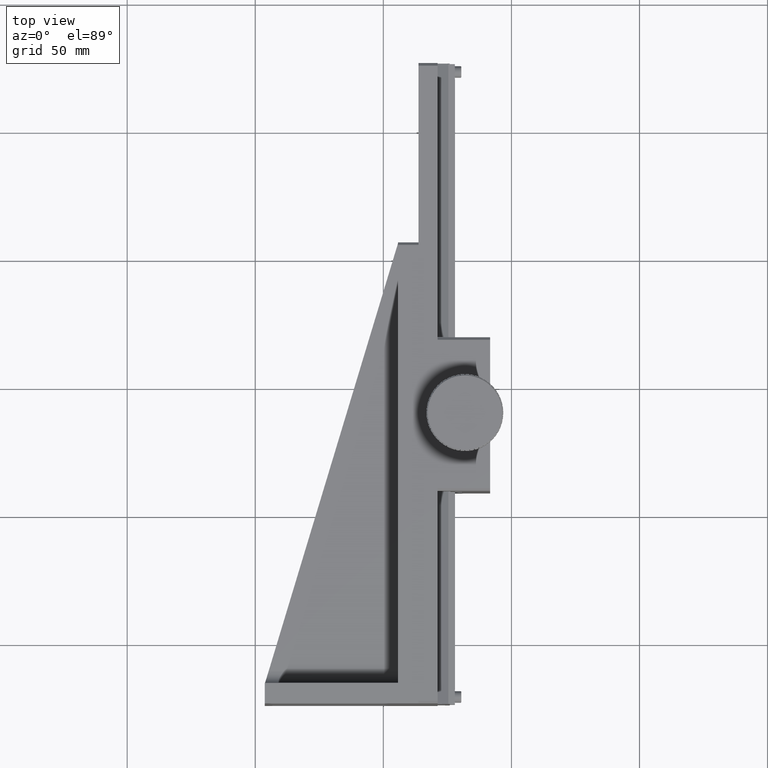
[diagram: clean part render]
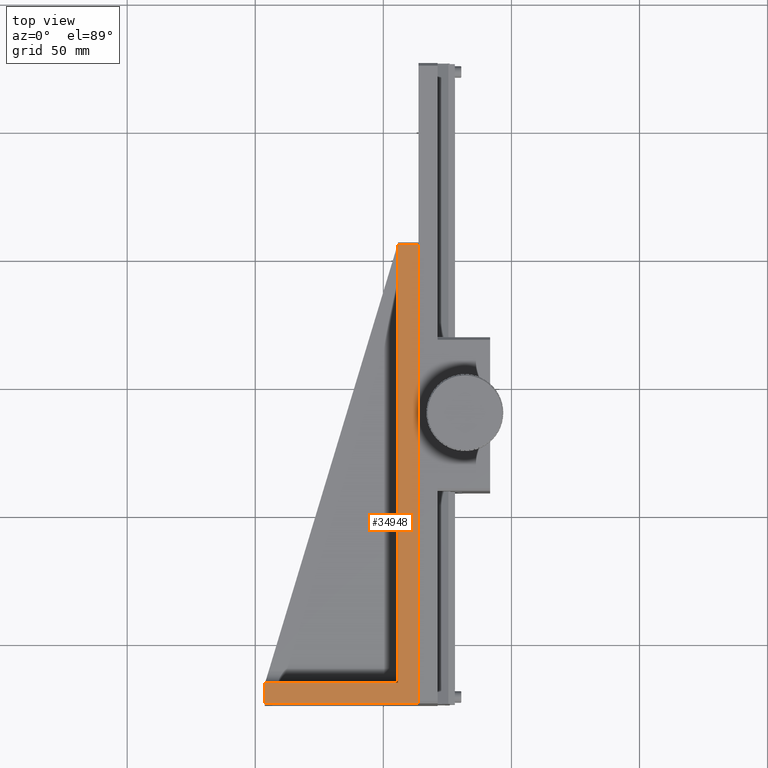
[diagram: same view with one face highlighted and labeled with its STEP entity id]
A machine part, top view. The second image highlights one B-rep face of the part: STEP entity #34948.
In plain terms, the highlighted planar face has unit normal (-0, 0, -1).
Its self-contained STEP definition (entity closure, byte-faithful):
#4862 = EDGE_CURVE ( 'NONE', #35959, #34121, #79175, .T. ) ;
#5363 = EDGE_CURVE ( 'NONE', #34121, #7149, #28091, .T. ) ;
#7149 = VERTEX_POINT ( 'NONE', #93540 ) ;
#7888 = LINE ( 'NONE', #101549, #41598 ) ;
#8177 = EDGE_CURVE ( 'NONE', #7149, #60804, #108530, .T. ) ;
#8320 = CARTESIAN_POINT ( 'NONE',  ( 3.709557240853277094, 134.1604683425934184, 150.7408711668434194 ) ) ;
#11080 = EDGE_LOOP ( 'NONE', ( #26043, #51105, #40404, #65509, #88779, #64839 ) ) ;
#11398 = CARTESIAN_POINT ( 'NONE',  ( 55.70955724085326466, 305.1604683425933899, 150.7408711668431351 ) ) ;
#11626 = DIRECTION ( 'NONE',  ( -1.000000000000000000, 0.000000000000000000, 6.982962677686266711E-15 ) ) ;
#11686 = EDGE_CURVE ( 'NONE', #32238, #11992, #7888, .T. ) ;
#11992 = VERTEX_POINT ( 'NONE', #69587 ) ;
#20614 = PLANE ( 'NONE',  #28192 ) ;
#21779 = VECTOR ( 'NONE', #100133, 1000.000000000000000 ) ;
#24638 = EDGE_CURVE ( 'NONE', #32238, #35959, #29538, .T. ) ;
#26043 = ORIENTED_EDGE ( 'NONE', *, *, #104092, .F. ) ;
#26784 = VECTOR ( 'NONE', #75443, 1000.000000000000000 ) ;
#27797 = CARTESIAN_POINT ( 'NONE',  ( 63.70955724085327887, 126.1604683425934184, 150.7408711668433057 ) ) ;
#28091 = LINE ( 'NONE', #71889, #100409 ) ;
#28192 = AXIS2_PLACEMENT_3D ( 'NONE', #104175, #63805, #78977 ) ;
#28310 = CARTESIAN_POINT ( 'NONE',  ( 3.709557240853068816, 126.1604683425934184, 150.7408711668435330 ) ) ;
#29538 = LINE ( 'NONE', #36848, #36492 ) ;
#32238 = VERTEX_POINT ( 'NONE', #27797 ) ;
#32765 = LINE ( 'NONE', #47396, #26784 ) ;
#34121 = VERTEX_POINT ( 'NONE', #8320 ) ;
#34948 = ADVANCED_FACE ( 'NONE', ( #70576 ), #20614, .F. ) ;
#35959 = VERTEX_POINT ( 'NONE', #28310 ) ;
#36492 = VECTOR ( 'NONE', #11626, 1000.000000000000000 ) ;
#36848 = CARTESIAN_POINT ( 'NONE',  ( 63.70955724085327887, 126.1604683425934184, 150.7408711668431351 ) ) ;
#40404 = ORIENTED_EDGE ( 'NONE', *, *, #5363, .F. ) ;
#41598 = VECTOR ( 'NONE', #49995, 1000.000000000000000 ) ;
#47396 = CARTESIAN_POINT ( 'NONE',  ( 63.70955724085327887, 305.1604683425933899, 150.7408711668431351 ) ) ;
#49995 = DIRECTION ( 'NONE',  ( 0.000000000000000000, 1.000000000000000000, -0.000000000000000000 ) ) ;
#51105 = ORIENTED_EDGE ( 'NONE', *, *, #8177, .F. ) ;
#60804 = VERTEX_POINT ( 'NONE', #11398 ) ;
#61051 = VECTOR ( 'NONE', #107140, 1000.000000000000000 ) ;
#62337 = DIRECTION ( 'NONE',  ( 1.000000000000000000, -0.000000000000000000, -6.982962677686266711E-15 ) ) ;
#63805 = DIRECTION ( 'NONE',  ( -6.982962677686266711E-15, 0.000000000000000000, -1.000000000000000000 ) ) ;
#64839 = ORIENTED_EDGE ( 'NONE', *, *, #11686, .T. ) ;
#65509 = ORIENTED_EDGE ( 'NONE', *, *, #4862, .F. ) ;
#69587 = CARTESIAN_POINT ( 'NONE',  ( 63.70955724085327887, 305.1604683425933331, 150.7408711668431351 ) ) ;
#70576 = FACE_OUTER_BOUND ( 'NONE', #11080, .T. ) ;
#71889 = CARTESIAN_POINT ( 'NONE',  ( 63.70955724085327887, 134.1604683425934184, 150.7408711668431351 ) ) ;
#75443 = DIRECTION ( 'NONE',  ( 1.000000000000000000, -0.000000000000000000, -6.982962677686266711E-15 ) ) ;
#78977 = DIRECTION ( 'NONE',  ( -1.000000000000000000, 0.000000000000000000, 6.982962677686266711E-15 ) ) ;
#79175 = LINE ( 'NONE', #88707, #61051 ) ;
#82229 = CARTESIAN_POINT ( 'NONE',  ( 55.70955724085325755, 306.1604683425933899, 150.7408711668431636 ) ) ;
#88707 = CARTESIAN_POINT ( 'NONE',  ( 3.709557240853277094, 306.1604683425933899, 150.7408711668435330 ) ) ;
#88779 = ORIENTED_EDGE ( 'NONE', *, *, #24638, .F. ) ;
#93540 = CARTESIAN_POINT ( 'NONE',  ( 55.70955724085325755, 134.1604683425934184, 150.7408711668431351 ) ) ;
#100133 = DIRECTION ( 'NONE',  ( 0.000000000000000000, 1.000000000000000000, 0.000000000000000000 ) ) ;
#100409 = VECTOR ( 'NONE', #62337, 1000.000000000000000 ) ;
#101549 = CARTESIAN_POINT ( 'NONE',  ( 63.70955724085327887, 306.1604683425933899, 150.7408711668431351 ) ) ;
#104092 = EDGE_CURVE ( 'NONE', #60804, #11992, #32765, .T. ) ;
#104175 = CARTESIAN_POINT ( 'NONE',  ( 63.70955724085327887, 306.1604683425933899, 150.7408711668431351 ) ) ;
#107140 = DIRECTION ( 'NONE',  ( 0.000000000000000000, 1.000000000000000000, 0.000000000000000000 ) ) ;
#108530 = LINE ( 'NONE', #82229, #21779 ) ;